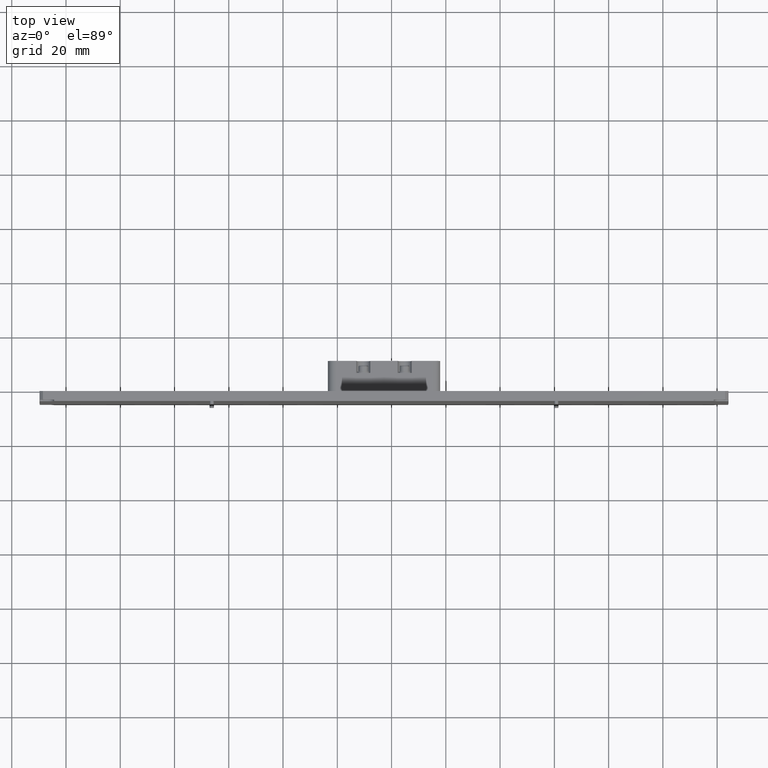
[diagram: clean part render]
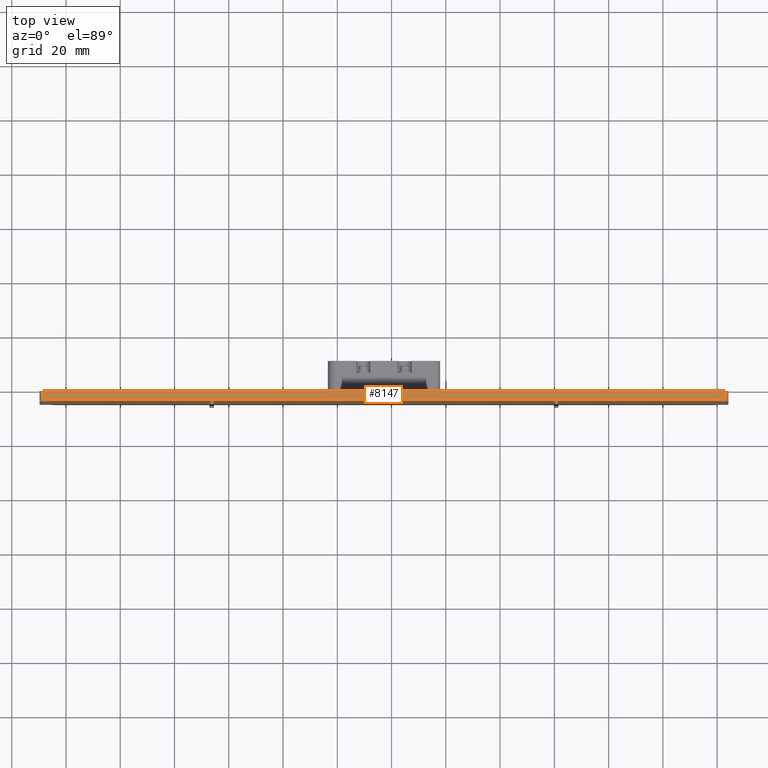
[diagram: same view with one face highlighted and labeled with its STEP entity id]
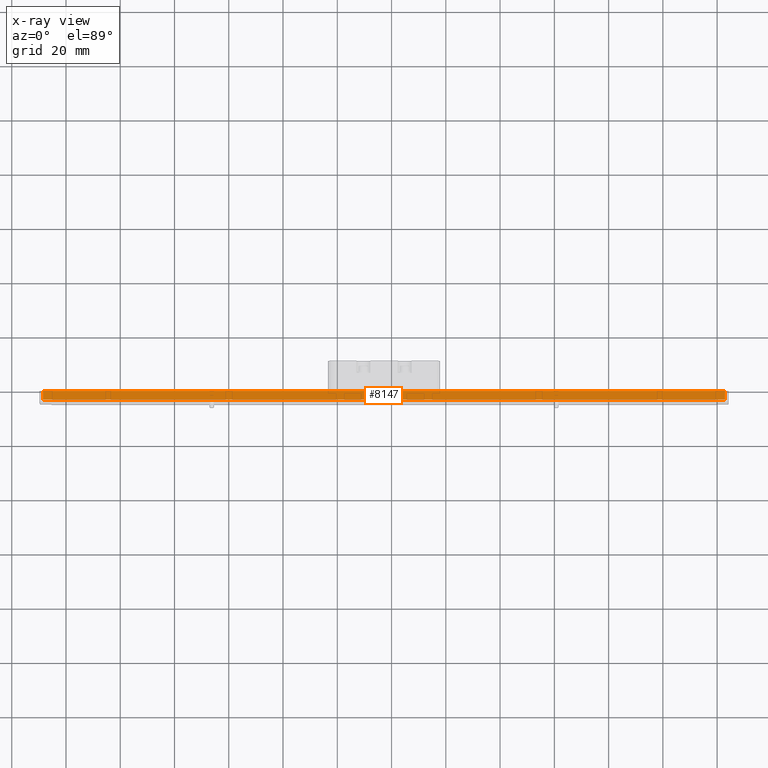
[diagram: x-ray of the same camera — body ghosted, the highlighted face saturated]
A machine part, top view. The second image highlights one B-rep face of the part: STEP entity #8147.
The next image is the same camera in x-ray: the body ghosted, the highlighted face saturated — about 0% of this face is hidden behind the body in this view.
In plain terms, the highlighted planar face has unit normal (0, 0, -1).
Its self-contained STEP definition (entity closure, byte-faithful):
#415 = LINE ( 'NONE', #7849, #5712 ) ;
#1839 = EDGE_CURVE ( 'NONE', #7582, #9980, #13606, .T. ) ;
#2908 = EDGE_CURVE ( 'NONE', #13730, #6882, #415, .T. ) ;
#4907 = ORIENTED_EDGE ( 'NONE', *, *, #1839, .T. ) ;
#5534 = PLANE ( 'NONE',  #7279 ) ;
#5663 = ORIENTED_EDGE ( 'NONE', *, *, #2908, .F. ) ;
#5712 = VECTOR ( 'NONE', #9887, 1000.000000000000000 ) ;
#5739 = FACE_OUTER_BOUND ( 'NONE', #12147, .T. ) ;
#6254 = CARTESIAN_POINT ( 'NONE',  ( 102.9448905491917543, 18.86423224274894750, 44.73583481082476965 ) ) ;
#6732 = VECTOR ( 'NONE', #12135, 1000.000000000000000 ) ;
#6882 = VERTEX_POINT ( 'NONE', #6254 ) ;
#7279 = AXIS2_PLACEMENT_3D ( 'NONE', #8755, #7839, #13039 ) ;
#7582 = VERTEX_POINT ( 'NONE', #13857 ) ;
#7788 = ORIENTED_EDGE ( 'NONE', *, *, #11654, .T. ) ;
#7839 = DIRECTION ( 'NONE',  ( 0.000000000000000000, 0.000000000000000000, -1.000000000000000000 ) ) ;
#7849 = CARTESIAN_POINT ( 'NONE',  ( 104.2148905491917503, 18.86423224274894750, 44.73583481082477675 ) ) ;
#8147 = ADVANCED_FACE ( 'NONE', ( #5739 ), #5534, .F. ) ;
#8373 = VECTOR ( 'NONE', #10372, 1000.000000000000000 ) ;
#8755 = CARTESIAN_POINT ( 'NONE',  ( 104.2148905491917503, 18.86423224274894750, 44.73583481082477675 ) ) ;
#9807 = CARTESIAN_POINT ( 'NONE',  ( -148.5151094508082110, 18.86423224274894750, 44.73583481082478386 ) ) ;
#9887 = DIRECTION ( 'NONE',  ( 1.000000000000000000, -0.000000000000000000, -0.000000000000000000 ) ) ;
#9980 = VERTEX_POINT ( 'NONE', #10495 ) ;
#10372 = DIRECTION ( 'NONE',  ( 1.000000000000000000, -0.000000000000000000, -0.000000000000000000 ) ) ;
#10495 = CARTESIAN_POINT ( 'NONE',  ( 102.9448905491917543, 15.68923224274894679, 44.73583481082477675 ) ) ;
#10812 = LINE ( 'NONE', #13127, #6732 ) ;
#11043 = VECTOR ( 'NONE', #12522, 1000.000000000000000 ) ;
#11466 = CARTESIAN_POINT ( 'NONE',  ( 102.9448905491917543, 18.86423224274894750, 44.73583481082477675 ) ) ;
#11654 = EDGE_CURVE ( 'NONE', #13730, #7582, #10812, .T. ) ;
#12135 = DIRECTION ( 'NONE',  ( 0.000000000000000000, -1.000000000000000000, 0.000000000000000000 ) ) ;
#12147 = EDGE_LOOP ( 'NONE', ( #4907, #12555, #5663, #7788 ) ) ;
#12274 = CARTESIAN_POINT ( 'NONE',  ( 104.2148905491917503, 15.68923224274894679, 44.73583481082477675 ) ) ;
#12522 = DIRECTION ( 'NONE',  ( 0.000000000000000000, 1.000000000000000000, 0.000000000000000000 ) ) ;
#12555 = ORIENTED_EDGE ( 'NONE', *, *, #12742, .T. ) ;
#12661 = LINE ( 'NONE', #11466, #11043 ) ;
#12742 = EDGE_CURVE ( 'NONE', #9980, #6882, #12661, .T. ) ;
#13039 = DIRECTION ( 'NONE',  ( -1.000000000000000000, 0.000000000000000000, -0.000000000000000000 ) ) ;
#13127 = CARTESIAN_POINT ( 'NONE',  ( -148.5151094508082679, 18.86423224274894750, 44.73583481082477675 ) ) ;
#13606 = LINE ( 'NONE', #12274, #8373 ) ;
#13730 = VERTEX_POINT ( 'NONE', #9807 ) ;
#13857 = CARTESIAN_POINT ( 'NONE',  ( -148.5151094508081826, 15.68923224274894679, 44.73583481082480517 ) ) ;